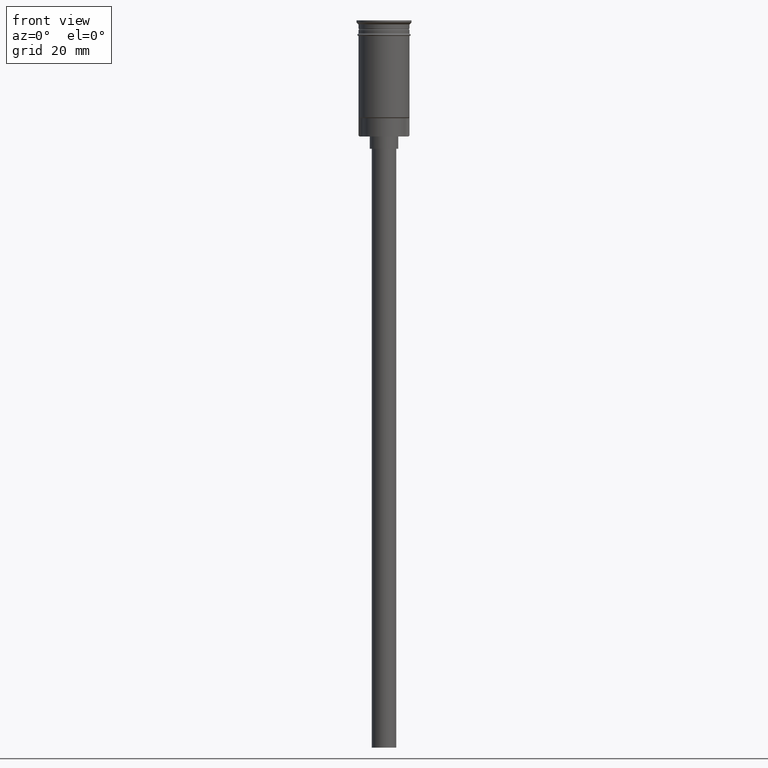
[diagram: clean part render]
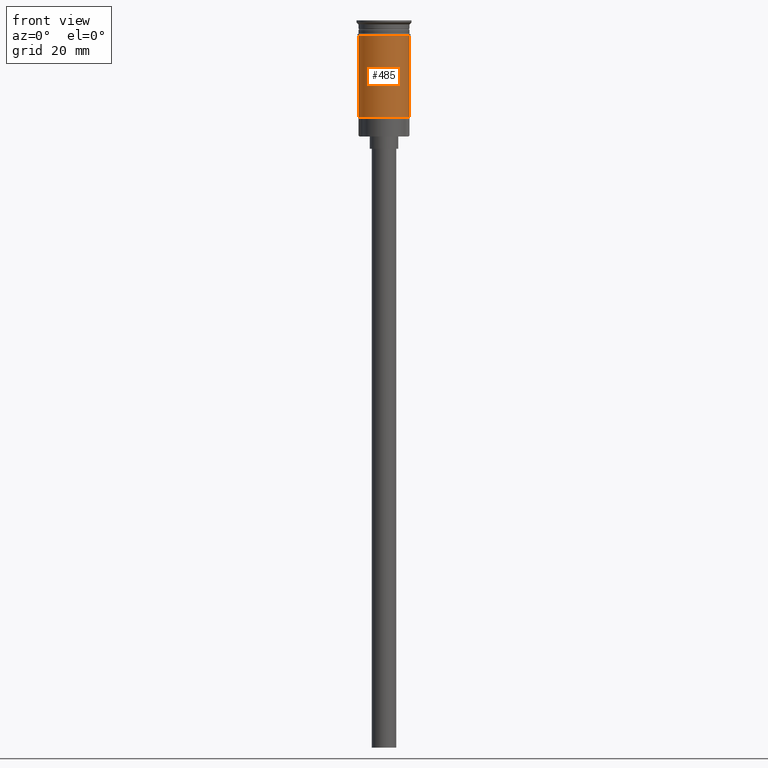
[diagram: same view with one face highlighted and labeled with its STEP entity id]
A machine part, front view. The second image highlights one B-rep face of the part: STEP entity #485.
In plain terms, the highlighted cylindrical surface (edge-blend (fillet) strip) has radius 6.25 mm, axis along (-0, -0, 1).
Its self-contained STEP definition (entity closure, byte-faithful):
#55 = VERTEX_POINT ( 'NONE', #855 ) ;
#71 = EDGE_CURVE ( 'NONE', #552, #1200, #532, .T. ) ;
#100 = EDGE_CURVE ( 'NONE', #589, #552, #1134, .T. ) ;
#117 = CARTESIAN_POINT ( 'NONE',  ( -6.249999999999995559, 0.000000000000000000, -23.80000000000000782 ) ) ;
#237 = VECTOR ( 'NONE', #270, 1000.000000000000000 ) ;
#241 = ORIENTED_EDGE ( 'NONE', *, *, #619, .T. ) ;
#256 = ORIENTED_EDGE ( 'NONE', *, *, #100, .F. ) ;
#270 = DIRECTION ( 'NONE',  ( -0.000000000000000000, -0.000000000000000000, 1.000000000000000000 ) ) ;
#376 = FACE_OUTER_BOUND ( 'NONE', #1390, .T. ) ;
#385 = CARTESIAN_POINT ( 'NONE',  ( 0.000000000000000000, 0.000000000000000000, -23.80000000000000782 ) ) ;
#392 = DIRECTION ( 'NONE',  ( -1.000000000000000000, 0.000000000000000000, 0.000000000000000000 ) ) ;
#485 = ADVANCED_FACE ( 'NONE', ( #376 ), #1484, .T. ) ;
#491 = EDGE_CURVE ( 'NONE', #589, #55, #1075, .T. ) ;
#532 = CIRCLE ( 'NONE', #865, 6.250000000000000000 ) ;
#535 = VECTOR ( 'NONE', #1410, 1000.000000000000000 ) ;
#552 = VERTEX_POINT ( 'NONE', #887 ) ;
#563 = LINE ( 'NONE', #1036, #535 ) ;
#584 = AXIS2_PLACEMENT_3D ( 'NONE', #385, #608, #392 ) ;
#589 = VERTEX_POINT ( 'NONE', #117 ) ;
#608 = DIRECTION ( 'NONE',  ( -0.000000000000000000, -0.000000000000000000, 1.000000000000000000 ) ) ;
#619 = EDGE_CURVE ( 'NONE', #55, #1200, #563, .T. ) ;
#640 = ORIENTED_EDGE ( 'NONE', *, *, #71, .F. ) ;
#814 = AXIS2_PLACEMENT_3D ( 'NONE', #1373, #1133, #1104 ) ;
#855 = CARTESIAN_POINT ( 'NONE',  ( 6.249999999999997335, 7.654042494670953662E-16, -23.80000000000000782 ) ) ;
#865 = AXIS2_PLACEMENT_3D ( 'NONE', #1539, #1423, #1330 ) ;
#887 = CARTESIAN_POINT ( 'NONE',  ( -6.250000000000000000, 7.654042494670958593E-16, -3.799999999999998490 ) ) ;
#1036 = CARTESIAN_POINT ( 'NONE',  ( 6.249999999999997335, 0.000000000000000000, 0.000000000000000000 ) ) ;
#1075 = CIRCLE ( 'NONE', #584, 6.249999999999997335 ) ;
#1104 = DIRECTION ( 'NONE',  ( 1.000000000000000000, 0.000000000000000000, 0.000000000000000000 ) ) ;
#1105 = CARTESIAN_POINT ( 'NONE',  ( -6.249999999999997335, 7.654042494670954648E-16, 0.000000000000000000 ) ) ;
#1131 = ORIENTED_EDGE ( 'NONE', *, *, #491, .T. ) ;
#1133 = DIRECTION ( 'NONE',  ( -0.000000000000000000, -0.000000000000000000, 1.000000000000000000 ) ) ;
#1134 = LINE ( 'NONE', #1105, #237 ) ;
#1200 = VERTEX_POINT ( 'NONE', #1391 ) ;
#1330 = DIRECTION ( 'NONE',  ( 1.000000000000000000, 0.000000000000000000, 0.000000000000000000 ) ) ;
#1373 = CARTESIAN_POINT ( 'NONE',  ( 0.000000000000000000, 0.000000000000000000, 0.000000000000000000 ) ) ;
#1390 = EDGE_LOOP ( 'NONE', ( #256, #1131, #241, #640 ) ) ;
#1391 = CARTESIAN_POINT ( 'NONE',  ( 6.250000000000000000, 0.000000000000000000, -3.799999999999998490 ) ) ;
#1410 = DIRECTION ( 'NONE',  ( -0.000000000000000000, -0.000000000000000000, 1.000000000000000000 ) ) ;
#1423 = DIRECTION ( 'NONE',  ( -0.000000000000000000, -0.000000000000000000, 1.000000000000000000 ) ) ;
#1484 = CYLINDRICAL_SURFACE ( 'NONE', #814, 6.249999999999997335 ) ;
#1539 = CARTESIAN_POINT ( 'NONE',  ( 0.000000000000000000, 0.000000000000000000, -3.799999999999998490 ) ) ;